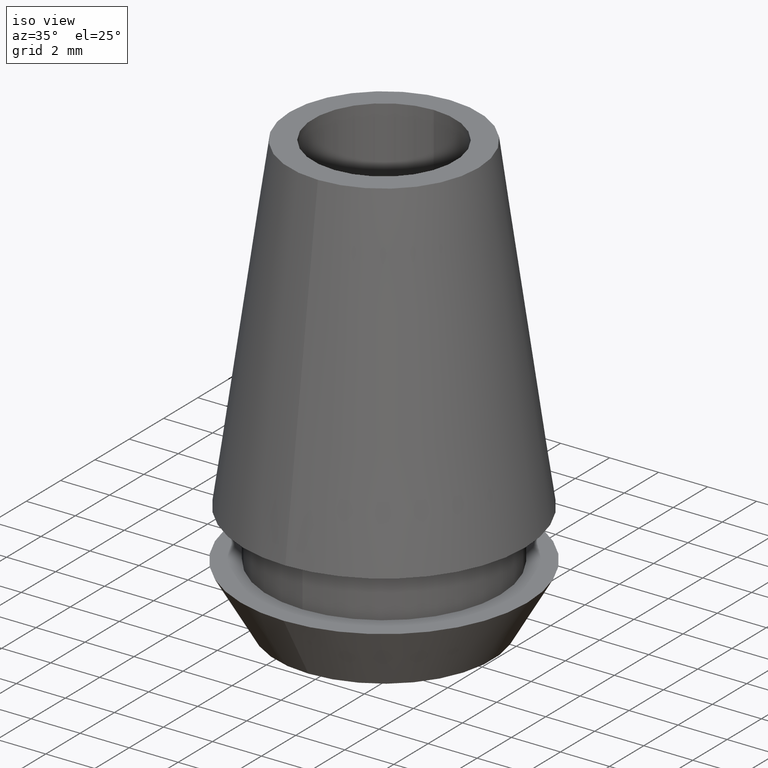
[diagram: clean part render]
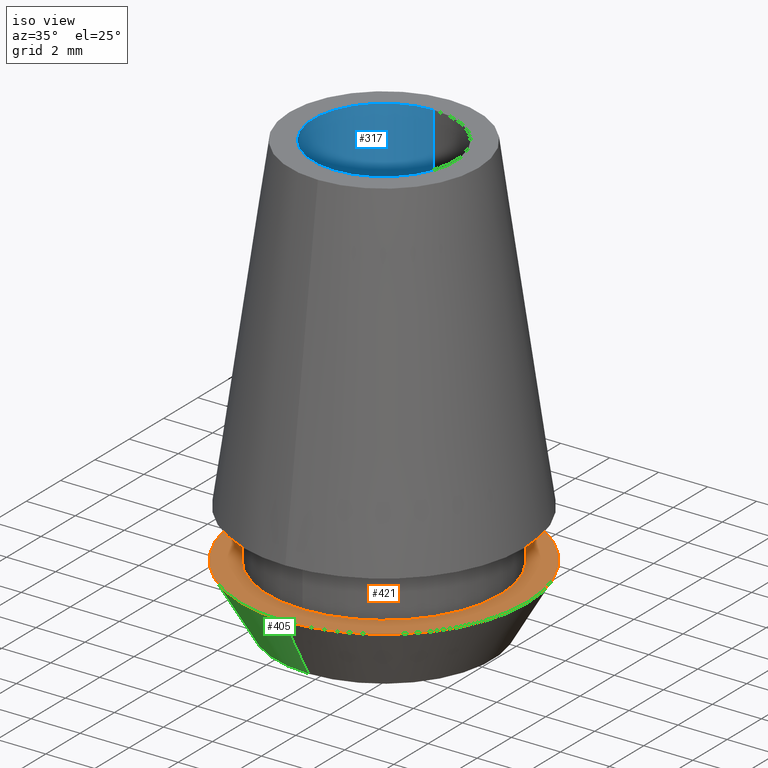
[diagram: same view with three faces highlighted in distinct colors, each labeled with its STEP entity id]
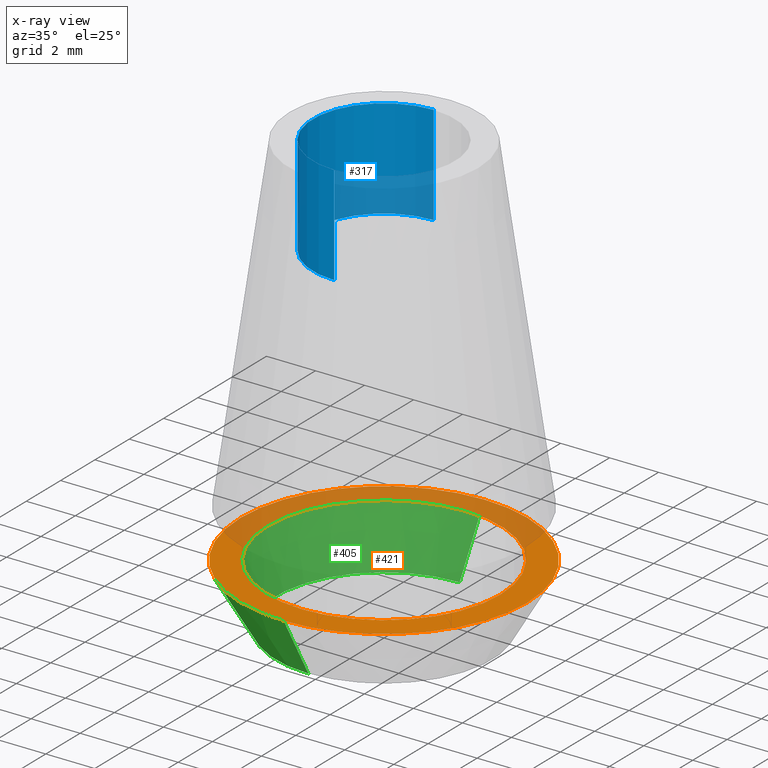
[diagram: x-ray of the same camera — body ghosted, the three highlighted faces saturated]
A machine part, iso view with three faces highlighted in distinct colors.
The next image is the same camera in x-ray (body ghosted, the three faces saturated) — at least one of them is partly hidden behind the body in this view.
Their STEP definitions:

[orange] entity #421 — the highlighted planar face has unit normal (0, 0, -1).
#124=CARTESIAN_POINT('',(0.E0,1.162802135790E-14,-1.55E1));
#125=DIRECTION('',(0.E0,0.E0,-1.E0));
#126=DIRECTION('',(0.E0,-1.E0,0.E0));
#127=AXIS2_PLACEMENT_3D('',#124,#125,#126);
#132=CARTESIAN_POINT('',(0.E0,1.162802135790E-14,-1.55E1));
#133=DIRECTION('',(0.E0,0.E0,-1.E0));
#134=DIRECTION('',(0.E0,1.E0,0.E0));
#135=AXIS2_PLACEMENT_3D('',#132,#133,#134);
#140=CARTESIAN_POINT('',(0.E0,1.378952295840E-14,-1.55E1));
#141=DIRECTION('',(0.E0,0.E0,1.E0));
#142=DIRECTION('',(0.E0,-1.E0,0.E0));
#143=AXIS2_PLACEMENT_3D('',#140,#141,#142);
#148=CARTESIAN_POINT('',(0.E0,1.378952295840E-14,-1.55E1));
#149=DIRECTION('',(0.E0,0.E0,1.E0));
#150=DIRECTION('',(0.E0,1.E0,0.E0));
#151=AXIS2_PLACEMENT_3D('',#148,#149,#150);
#268=CARTESIAN_POINT('',(0.E0,5.85E0,-1.55E1));
#269=VERTEX_POINT('',#268);
#270=CARTESIAN_POINT('',(0.E0,-5.85E0,-1.55E1));
#271=VERTEX_POINT('',#270);
#272=CARTESIAN_POINT('',(0.E0,-4.75E0,-1.55E1));
#273=CARTESIAN_POINT('',(0.E0,4.75E0,-1.55E1));
#274=VERTEX_POINT('',#272);
#275=VERTEX_POINT('',#273);
#406=CARTESIAN_POINT('',(0.E0,1.178110220780E-14,-1.55E1));
#407=DIRECTION('',(0.E0,0.E0,-1.E0));
#408=DIRECTION('',(0.E0,-1.E0,0.E0));
#409=AXIS2_PLACEMENT_3D('',#406,#407,#408);
#410=PLANE('',#409);
#411=ORIENTED_EDGE('',*,*,#399,.T.);
#412=ORIENTED_EDGE('',*,*,#388,.T.);
#413=EDGE_LOOP('',(#411,#412));
#414=FACE_OUTER_BOUND('',#413,.F.);
#416=ORIENTED_EDGE('',*,*,#415,.T.);
#418=ORIENTED_EDGE('',*,*,#417,.T.);
#419=EDGE_LOOP('',(#416,#418));
#420=FACE_BOUND('',#419,.F.);
#128=CIRCLE('',#127,5.85E0);
#136=CIRCLE('',#135,5.85E0);
#144=CIRCLE('',#143,4.75E0);
#152=CIRCLE('',#151,4.75E0);
#388=EDGE_CURVE('',#269,#271,#136,.T.);
#399=EDGE_CURVE('',#271,#269,#128,.T.);
#415=EDGE_CURVE('',#274,#275,#144,.T.);
#417=EDGE_CURVE('',#275,#274,#152,.T.);
#421=ADVANCED_FACE('',(#414,#420),#410,.F.);

[blue] entity #317 — the highlighted cylindrical surface (partial cylindrical patch) has radius 2.9 mm, axis along (0, 0, -1).
#17=DIRECTION('',(0.E0,0.E0,1.E0));
#18=VECTOR('',#17,4.067E0);
#19=CARTESIAN_POINT('',(0.E0,2.9E0,-4.067E0));
#20=LINE('',#19,#18);
#25=DIRECTION('',(0.E0,0.E0,1.E0));
#26=VECTOR('',#25,4.067E0);
#27=CARTESIAN_POINT('',(0.E0,-2.9E0,-4.067E0));
#28=LINE('',#27,#26);
#32=CARTESIAN_POINT('',(0.E0,1.378952295840E-14,-4.067E0));
#33=DIRECTION('',(0.E0,0.E0,-1.E0));
#34=DIRECTION('',(0.E0,-1.E0,0.E0));
#35=AXIS2_PLACEMENT_3D('',#32,#33,#34);
#240=CARTESIAN_POINT('',(0.E0,1.378952295840E-14,0.E0));
#241=DIRECTION('',(0.E0,0.E0,1.E0));
#242=DIRECTION('',(0.E0,1.E0,0.E0));
#243=AXIS2_PLACEMENT_3D('',#240,#241,#242);
#248=CARTESIAN_POINT('',(0.E0,2.9E0,-4.067E0));
#249=CARTESIAN_POINT('',(0.E0,2.9E0,0.E0));
#250=VERTEX_POINT('',#248);
#251=VERTEX_POINT('',#249);
#252=CARTESIAN_POINT('',(0.E0,-2.9E0,0.E0));
#253=VERTEX_POINT('',#252);
#254=CARTESIAN_POINT('',(0.E0,-2.9E0,-4.067E0));
#255=VERTEX_POINT('',#254);
#304=CARTESIAN_POINT('',(0.E0,1.378952295840E-14,9.E-1));
#305=DIRECTION('',(0.E0,0.E0,-1.E0));
#306=DIRECTION('',(0.E0,-1.E0,0.E0));
#307=AXIS2_PLACEMENT_3D('',#304,#305,#306);
#308=CYLINDRICAL_SURFACE('',#307,2.9E0);
#309=ORIENTED_EDGE('',*,*,#293,.F.);
#311=ORIENTED_EDGE('',*,*,#310,.F.);
#312=ORIENTED_EDGE('',*,*,#297,.T.);
#314=ORIENTED_EDGE('',*,*,#313,.F.);
#315=EDGE_LOOP('',(#309,#311,#312,#314));
#316=FACE_OUTER_BOUND('',#315,.F.);
#36=CIRCLE('',#35,2.9E0);
#244=CIRCLE('',#243,2.9E0);
#293=EDGE_CURVE('',#250,#251,#20,.T.);
#297=EDGE_CURVE('',#255,#253,#28,.T.);
#310=EDGE_CURVE('',#255,#250,#36,.T.);
#313=EDGE_CURVE('',#251,#253,#244,.T.);
#317=ADVANCED_FACE('',(#316),#308,.F.);

[green] entity #405 — the highlighted conical surface has half-angle 30 deg.
#86=CARTESIAN_POINT('',(0.E0,1.162802135790E-14,-1.8E1));
#87=DIRECTION('',(0.E0,0.E0,1.E0));
#88=DIRECTION('',(0.E0,1.E0,0.E0));
#89=AXIS2_PLACEMENT_3D('',#86,#87,#88);
#110=DIRECTION('',(0.E0,-5.E-1,-8.660254037844E-1));
#111=VECTOR('',#110,2.886751345948E0);
#112=CARTESIAN_POINT('',(0.E0,5.85E0,-1.55E1));
#113=LINE('',#112,#111);
#117=DIRECTION('',(0.E0,5.E-1,-8.660254037844E-1));
#118=VECTOR('',#117,2.886751345948E0);
#119=CARTESIAN_POINT('',(0.E0,-5.85E0,-1.55E1));
#120=LINE('',#119,#118);
#124=CARTESIAN_POINT('',(0.E0,1.162802135790E-14,-1.55E1));
#125=DIRECTION('',(0.E0,0.E0,-1.E0));
#126=DIRECTION('',(0.E0,-1.E0,0.E0));
#127=AXIS2_PLACEMENT_3D('',#124,#125,#126);
#264=CARTESIAN_POINT('',(0.E0,-4.406624327026E0,-1.8E1));
#265=CARTESIAN_POINT('',(0.E0,4.406624327026E0,-1.8E1));
#266=VERTEX_POINT('',#264);
#267=VERTEX_POINT('',#265);
#268=CARTESIAN_POINT('',(0.E0,5.85E0,-1.55E1));
#269=VERTEX_POINT('',#268);
#270=CARTESIAN_POINT('',(0.E0,-5.85E0,-1.55E1));
#271=VERTEX_POINT('',#270);
#393=CARTESIAN_POINT('',(0.E0,1.162802135790E-14,-1.675E1));
#394=DIRECTION('',(0.E0,0.E0,1.E0));
#395=DIRECTION('',(0.E0,1.E0,0.E0));
#396=AXIS2_PLACEMENT_3D('',#393,#394,#395);
#397=CONICAL_SURFACE('',#396,5.128312163513E0,3.E1);
#398=ORIENTED_EDGE('',*,*,#383,.F.);
#400=ORIENTED_EDGE('',*,*,#399,.F.);
#401=ORIENTED_EDGE('',*,*,#386,.T.);
#402=ORIENTED_EDGE('',*,*,#369,.F.);
#403=EDGE_LOOP('',(#398,#400,#401,#402));
#404=FACE_OUTER_BOUND('',#403,.F.);
#90=CIRCLE('',#89,4.406624327026E0);
#128=CIRCLE('',#127,5.85E0);
#369=EDGE_CURVE('',#267,#266,#90,.T.);
#383=EDGE_CURVE('',#269,#267,#113,.T.);
#386=EDGE_CURVE('',#271,#266,#120,.T.);
#399=EDGE_CURVE('',#271,#269,#128,.T.);
#405=ADVANCED_FACE('',(#404),#397,.T.);